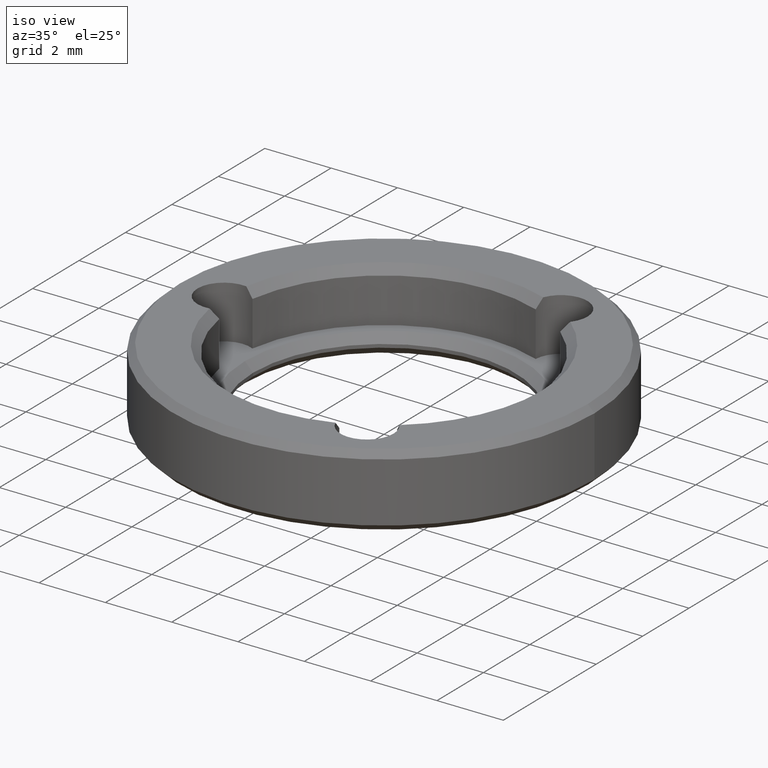
[diagram: clean part render]
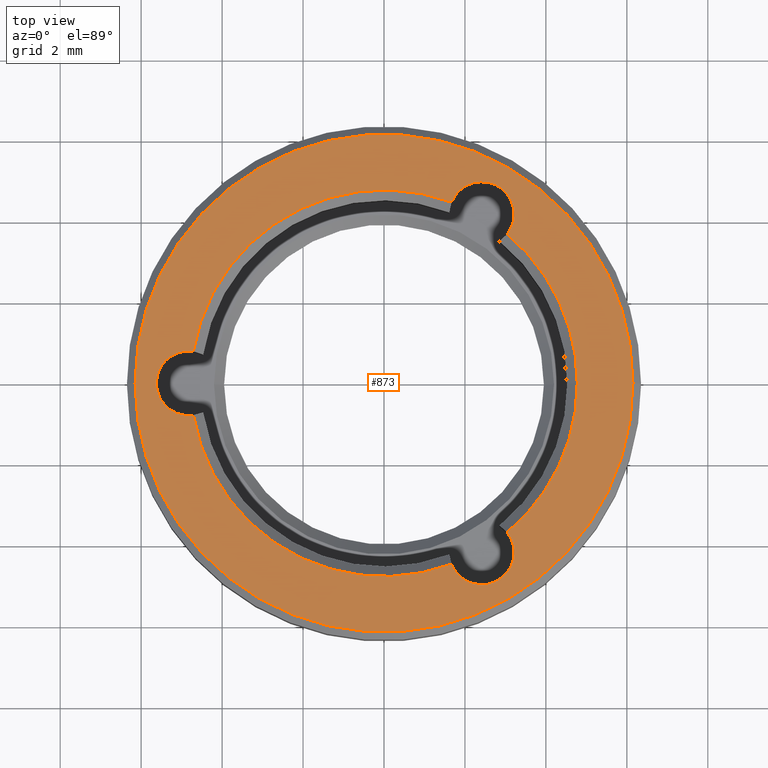
[diagram: tour spotlight — one face highlighted and labeled with its STEP entity id]
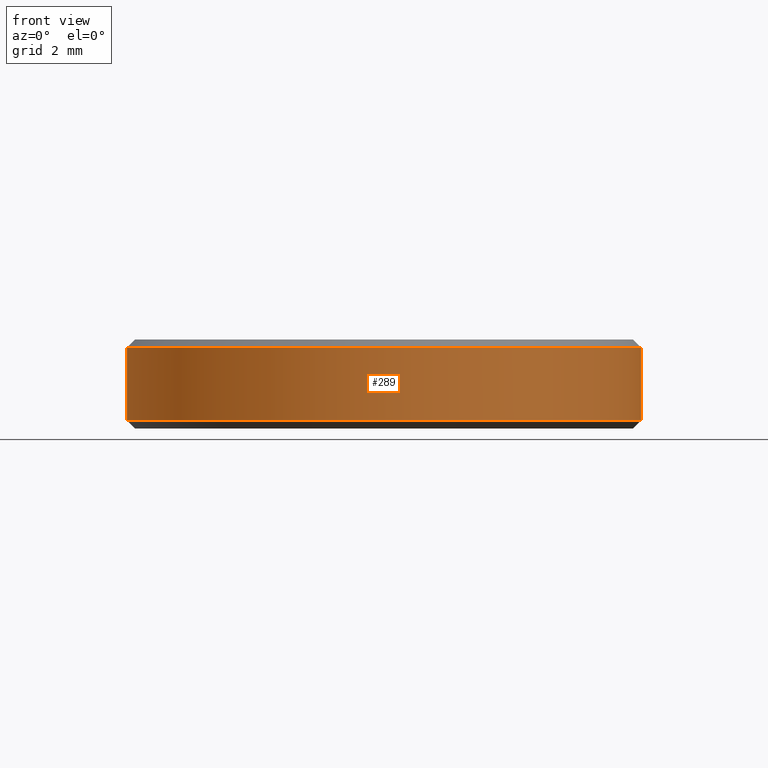
[diagram: tour spotlight — one face highlighted and labeled with its STEP entity id]
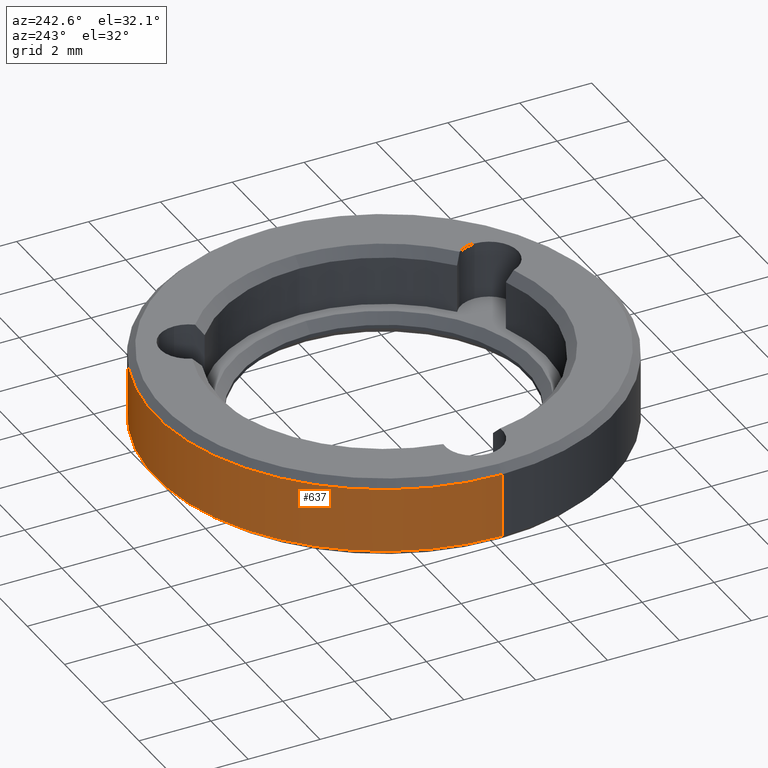
[diagram: tour spotlight — one face highlighted and labeled with its STEP entity id]
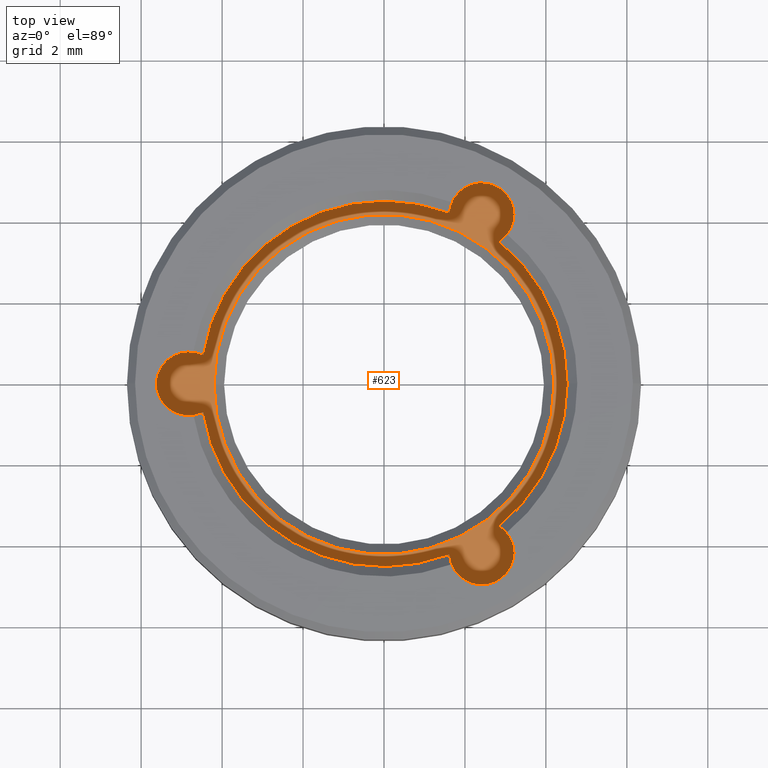
[diagram: tour spotlight — one face highlighted and labeled with its STEP entity id]
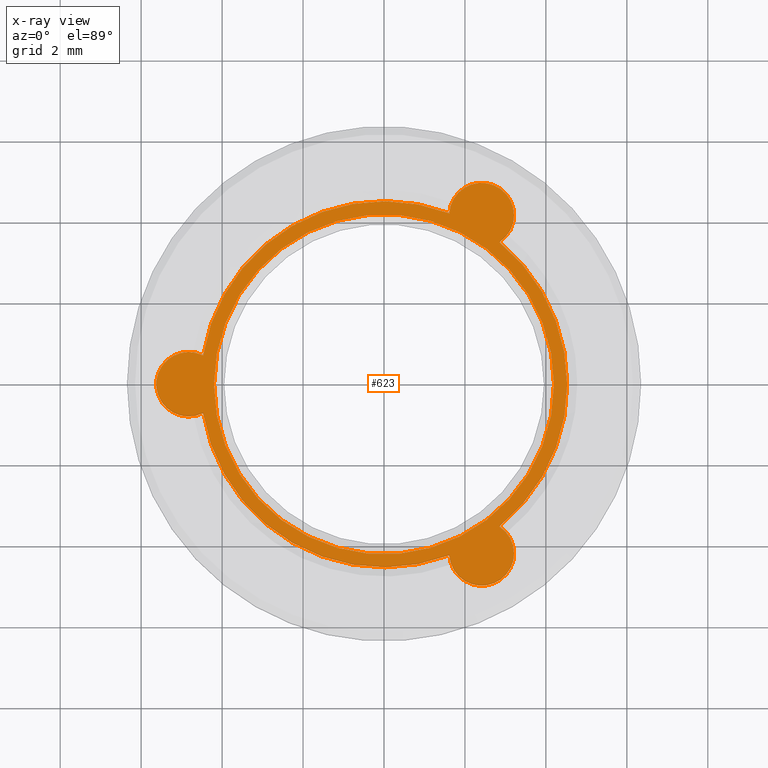
[diagram: x-ray of the same camera — body ghosted, this tour face saturated]
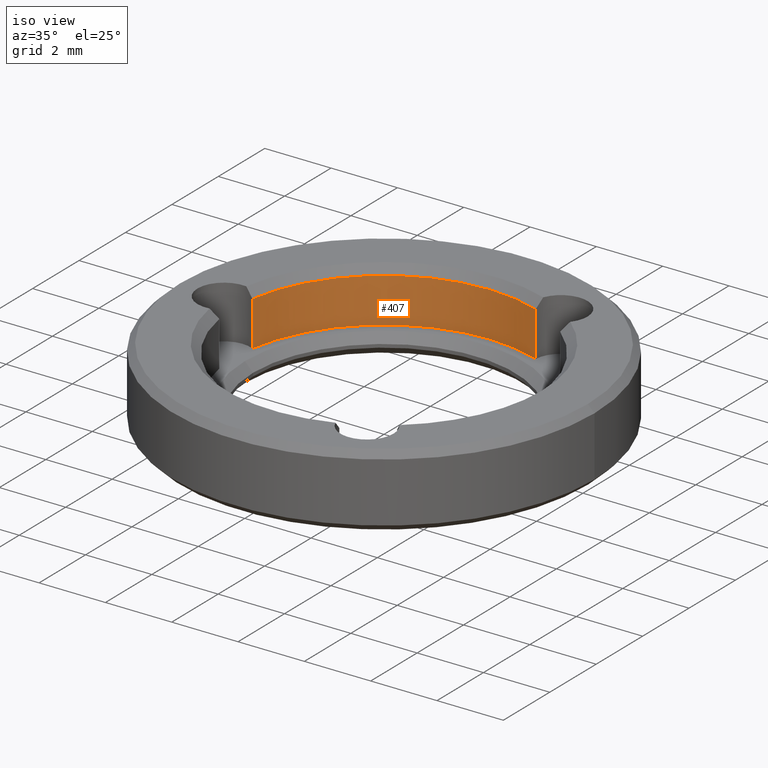
[diagram: tour spotlight — one face highlighted and labeled with its STEP entity id]
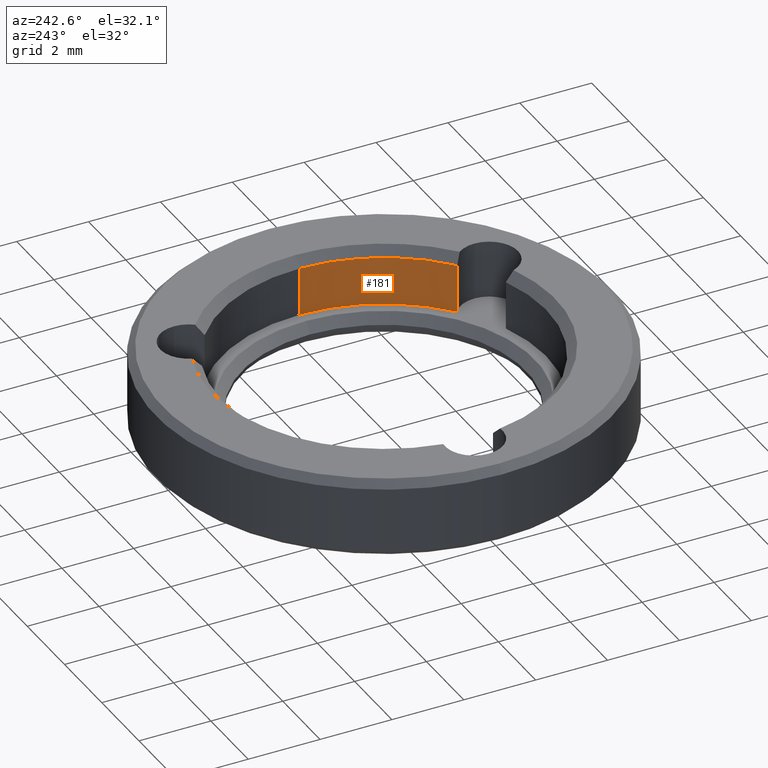
[diagram: tour spotlight — one face highlighted and labeled with its STEP entity id]
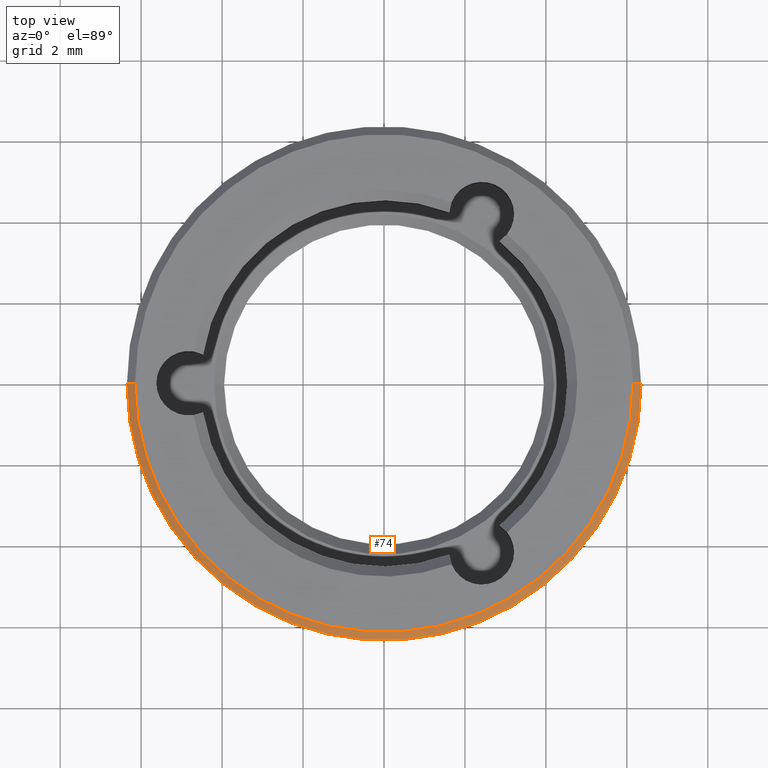
[diagram: tour spotlight — one face highlighted and labeled with its STEP entity id]
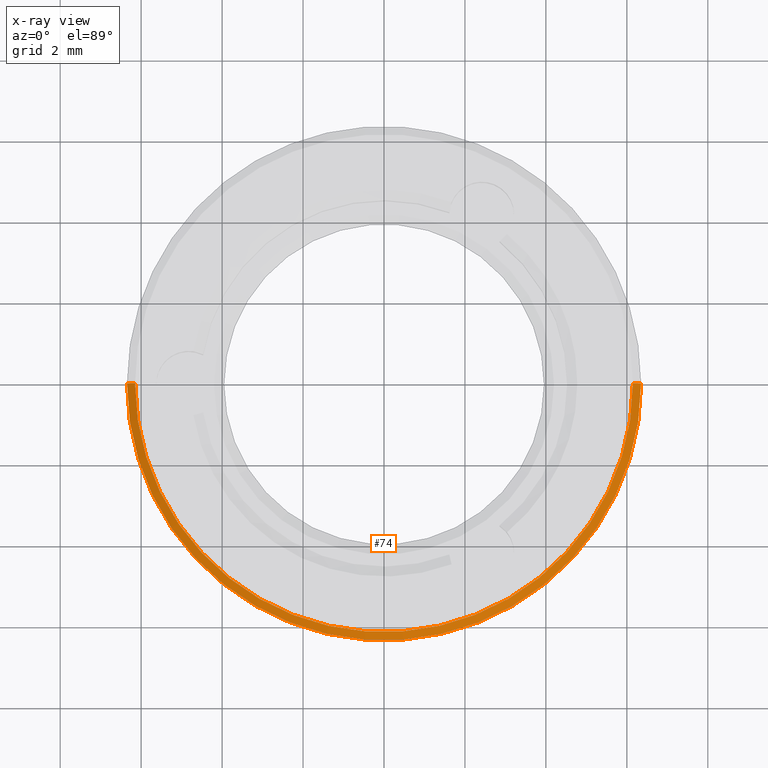
[diagram: x-ray of the same camera — body ghosted, this tour face saturated]
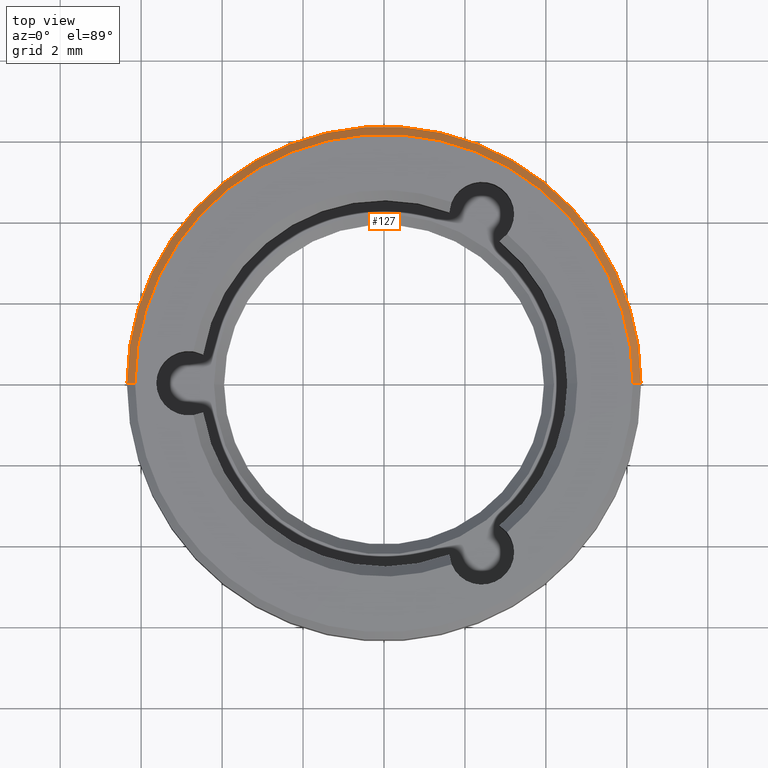
[diagram: tour spotlight — one face highlighted and labeled with its STEP entity id]
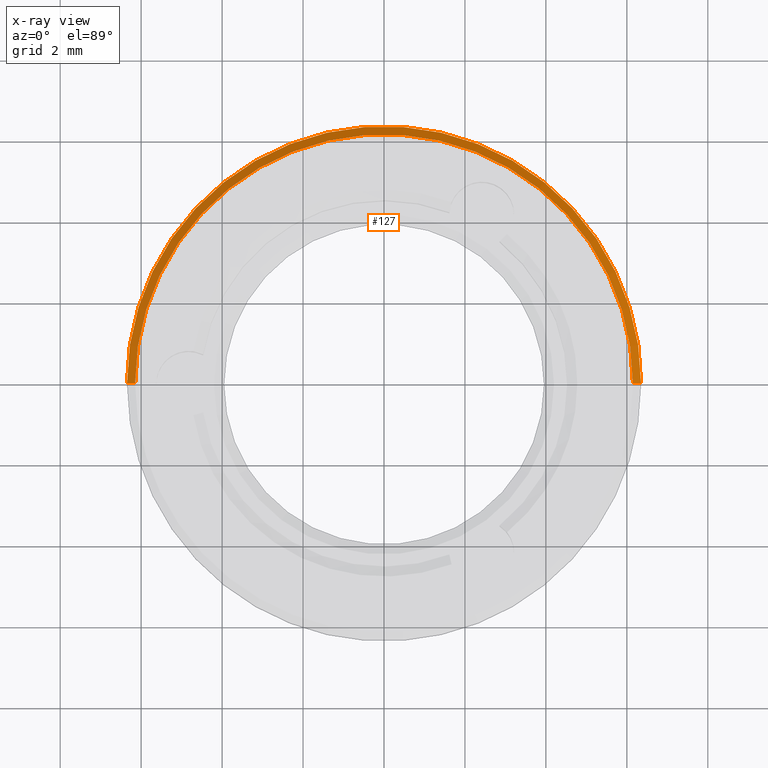
[diagram: x-ray of the same camera — body ghosted, this tour face saturated]
A machine part: a face-by-face anatomy tour. The part has 28 B-rep faces; the first image is the clean iso view, then the 8 largest visible faces are spotlighted one at a time (largest first), each with its STEP entity span.

Face 1 — top view, entity #873. In plain terms, the highlighted planar face has unit normal (0, 0, 1).
Definition (entity closure, byte-faithful):
#5 = CIRCLE ( 'NONE', #522, 0.8000000000000010436 ) ;
#13 = VERTEX_POINT ( 'NONE', #448 ) ;
#14 = AXIS2_PLACEMENT_3D ( 'NONE', #631, #621, #826 ) ;
#15 = CIRCLE ( 'NONE', #471, 4.775000000000006573 ) ;
#24 = ORIENTED_EDGE ( 'NONE', *, *, #762, .T. ) ;
#27 = DIRECTION ( 'NONE',  ( 1.000000000000000000, 0.000000000000000000, 0.000000000000000000 ) ) ;
#31 = CARTESIAN_POINT ( 'NONE',  ( -4.825000000000000178, -5.908920805885979576E-16, 2.200000000000000178 ) ) ;
#35 = VERTEX_POINT ( 'NONE', #676 ) ;
#75 = CIRCLE ( 'NONE', #103, 0.8000000000000009326 ) ;
#76 = CARTESIAN_POINT ( 'NONE',  ( 2.412500000000020517, -4.178572573259906164, 2.200000000000000178 ) ) ;
#79 = EDGE_CURVE ( 'NONE', #35, #815, #5, .T. ) ;
#85 = DIRECTION ( 'NONE',  ( 0.000000000000000000, 0.000000000000000000, 1.000000000000000000 ) ) ;
#93 = ORIENTED_EDGE ( 'NONE', *, *, #322, .F. ) ;
#102 = EDGE_CURVE ( 'NONE', #574, #143, #365, .T. ) ;
#103 = AXIS2_PLACEMENT_3D ( 'NONE', #305, #645, #862 ) ;
#115 = DIRECTION ( 'NONE',  ( 1.000000000000000000, 0.000000000000000000, -0.000000000000000000 ) ) ;
#133 = CIRCLE ( 'NONE', #486, 0.8000000000000009326 ) ;
#143 = VERTEX_POINT ( 'NONE', #205 ) ;
#148 = CIRCLE ( 'NONE', #668, 0.8000000000000010436 ) ;
#150 = AXIS2_PLACEMENT_3D ( 'NONE', #31, #303, #27 ) ;
#157 = EDGE_CURVE ( 'NONE', #251, #799, #455, .T. ) ;
#159 = VERTEX_POINT ( 'NONE', #476 ) ;
#167 = CIRCLE ( 'NONE', #150, 0.8000000000000012657 ) ;
#179 = CARTESIAN_POINT ( 'NONE',  ( 3.039959377531102014, 3.682291675432675770, 2.200000000000000178 ) ) ;
#186 = EDGE_LOOP ( 'NONE', ( #661, #24, #740, #93, #791, #771, #359, #849, #460 ) ) ;
#205 = CARTESIAN_POINT ( 'NONE',  ( -6.149999999999999467, 0.000000000000000000, 2.200000000000000178 ) ) ;
#215 = DIRECTION ( 'NONE',  ( -0.000000000000000000, -0.000000000000000000, -1.000000000000000000 ) ) ;
#219 = VERTEX_POINT ( 'NONE', #649 ) ;
#220 = CARTESIAN_POINT ( 'NONE',  ( 2.412499999999960565, 4.178572573259939027, 2.200000000000000178 ) ) ;
#230 = CARTESIAN_POINT ( 'NONE',  ( 4.775000000000006573, 0.000000000000000000, 2.200000000000000178 ) ) ;
#233 = CARTESIAN_POINT ( 'NONE',  ( 0.000000000000000000, 0.000000000000000000, 2.200000000000000178 ) ) ;
#251 = VERTEX_POINT ( 'NONE', #230 ) ;
#256 = EDGE_CURVE ( 'NONE', #143, #574, #559, .T. ) ;
#258 = DIRECTION ( 'NONE',  ( -0.5000000000000039968, 0.8660254037844362651, 0.000000000000000000 ) ) ;
#278 = EDGE_CURVE ( 'NONE', #431, #35, #148, .T. ) ;
#281 = CARTESIAN_POINT ( 'NONE',  ( 2.412499999999960565, 4.178572573259939027, 2.200000000000000178 ) ) ;
#285 = CARTESIAN_POINT ( 'NONE',  ( 0.000000000000000000, 0.000000000000000000, 2.200000000000000178 ) ) ;
#303 = DIRECTION ( 'NONE',  ( 0.000000000000000000, 0.000000000000000000, 1.000000000000000000 ) ) ;
#305 = CARTESIAN_POINT ( 'NONE',  ( 2.412500000000020517, -4.178572573259906164, 2.200000000000000178 ) ) ;
#307 = EDGE_LOOP ( 'NONE', ( #370, #375 ) ) ;
#315 = CARTESIAN_POINT ( 'NONE',  ( 0.000000000000000000, 0.000000000000000000, 2.200000000000000178 ) ) ;
#317 = DIRECTION ( 'NONE',  ( -0.000000000000000000, -0.000000000000000000, -1.000000000000000000 ) ) ;
#322 = EDGE_CURVE ( 'NONE', #13, #799, #75, .T. ) ;
#325 = PLANE ( 'NONE',  #670 ) ;
#341 = CARTESIAN_POINT ( 'NONE',  ( 6.149999999999999467, 7.654042494670954648E-16, 2.200000000000000178 ) ) ;
#355 = DIRECTION ( 'NONE',  ( 0.000000000000000000, 0.000000000000000000, 1.000000000000000000 ) ) ;
#359 = ORIENTED_EDGE ( 'NONE', *, *, #854, .F. ) ;
#365 = CIRCLE ( 'NONE', #871, 6.149999999999999467 ) ;
#370 = ORIENTED_EDGE ( 'NONE', *, *, #256, .T. ) ;
#374 = CIRCLE ( 'NONE', #440, 4.775000000000006573 ) ;
#375 = ORIENTED_EDGE ( 'NONE', *, *, #102, .T. ) ;
#384 = DIRECTION ( 'NONE',  ( 0.000000000000000000, 0.000000000000000000, 1.000000000000000000 ) ) ;
#399 = FACE_OUTER_BOUND ( 'NONE', #307, .T. ) ;
#416 = AXIS2_PLACEMENT_3D ( 'NONE', #878, #317, #680 ) ;
#424 = AXIS2_PLACEMENT_3D ( 'NONE', #285, #792, #844 ) ;
#431 = VERTEX_POINT ( 'NONE', #179 ) ;
#433 = CARTESIAN_POINT ( 'NONE',  ( -4.708937823834204117, 0.7915362096983687978, 2.200000000000000178 ) ) ;
#440 = AXIS2_PLACEMENT_3D ( 'NONE', #773, #215, #509 ) ;
#448 = CARTESIAN_POINT ( 'NONE',  ( 3.212500000000021672, -4.178572573259906164, 2.200000000000000178 ) ) ;
#449 = EDGE_CURVE ( 'NONE', #738, #815, #812, .T. ) ;
#455 = CIRCLE ( 'NONE', #14, 4.775000000000006573 ) ;
#460 = ORIENTED_EDGE ( 'NONE', *, *, #79, .F. ) ;
#471 = AXIS2_PLACEMENT_3D ( 'NONE', #233, #782, #713 ) ;
#476 = CARTESIAN_POINT ( 'NONE',  ( 1.668978446303088559, -4.473827885131008486, 2.200000000000000178 ) ) ;
#486 = AXIS2_PLACEMENT_3D ( 'NONE', #76, #881, #258 ) ;
#509 = DIRECTION ( 'NONE',  ( 1.000000000000000000, 0.000000000000000000, 0.000000000000000000 ) ) ;
#522 = AXIS2_PLACEMENT_3D ( 'NONE', #281, #636, #554 ) ;
#551 = CARTESIAN_POINT ( 'NONE',  ( 0.000000000000000000, 0.000000000000000000, 2.200000000000000178 ) ) ;
#554 = DIRECTION ( 'NONE',  ( -0.4999999999999920064, -0.8660254037844432595, 0.000000000000000000 ) ) ;
#559 = CIRCLE ( 'NONE', #424, 6.149999999999999467 ) ;
#563 = DIRECTION ( 'NONE',  ( 1.000000000000000000, 0.000000000000000000, 0.000000000000000000 ) ) ;
#574 = VERTEX_POINT ( 'NONE', #341 ) ;
#585 = DIRECTION ( 'NONE',  ( -0.4999999999999920064, -0.8660254037844432595, 0.000000000000000000 ) ) ;
#621 = DIRECTION ( 'NONE',  ( -0.000000000000000000, -0.000000000000000000, -1.000000000000000000 ) ) ;
#631 = CARTESIAN_POINT ( 'NONE',  ( 0.000000000000000000, 0.000000000000000000, 2.200000000000000178 ) ) ;
#636 = DIRECTION ( 'NONE',  ( 0.000000000000000000, 0.000000000000000000, 1.000000000000000000 ) ) ;
#645 = DIRECTION ( 'NONE',  ( 0.000000000000000000, 0.000000000000000000, 1.000000000000000000 ) ) ;
#649 = CARTESIAN_POINT ( 'NONE',  ( -4.708937823834204117, -0.7915362096983699081, 2.200000000000000178 ) ) ;
#661 = ORIENTED_EDGE ( 'NONE', *, *, #278, .F. ) ;
#668 = AXIS2_PLACEMENT_3D ( 'NONE', #220, #85, #585 ) ;
#670 = AXIS2_PLACEMENT_3D ( 'NONE', #315, #384, #115 ) ;
#672 = EDGE_CURVE ( 'NONE', #159, #219, #374, .T. ) ;
#676 = CARTESIAN_POINT ( 'NONE',  ( 3.212499999999961720, 4.178572573259939027, 2.200000000000000178 ) ) ;
#680 = DIRECTION ( 'NONE',  ( 1.000000000000000000, 0.000000000000000000, 0.000000000000000000 ) ) ;
#708 = CARTESIAN_POINT ( 'NONE',  ( 3.039959377531153528, -3.682291675432632250, 2.200000000000000178 ) ) ;
#713 = DIRECTION ( 'NONE',  ( 1.000000000000000000, 0.000000000000000000, 0.000000000000000000 ) ) ;
#738 = VERTEX_POINT ( 'NONE', #433 ) ;
#740 = ORIENTED_EDGE ( 'NONE', *, *, #157, .T. ) ;
#762 = EDGE_CURVE ( 'NONE', #431, #251, #15, .T. ) ;
#771 = ORIENTED_EDGE ( 'NONE', *, *, #672, .T. ) ;
#773 = CARTESIAN_POINT ( 'NONE',  ( 0.000000000000000000, 0.000000000000000000, 2.200000000000000178 ) ) ;
#782 = DIRECTION ( 'NONE',  ( -0.000000000000000000, -0.000000000000000000, -1.000000000000000000 ) ) ;
#791 = ORIENTED_EDGE ( 'NONE', *, *, #813, .F. ) ;
#792 = DIRECTION ( 'NONE',  ( 0.000000000000000000, 0.000000000000000000, 1.000000000000000000 ) ) ;
#794 = CARTESIAN_POINT ( 'NONE',  ( 1.668978446303025498, 4.473827885131032467, 2.200000000000000178 ) ) ;
#799 = VERTEX_POINT ( 'NONE', #708 ) ;
#800 = FACE_BOUND ( 'NONE', #186, .T. ) ;
#812 = CIRCLE ( 'NONE', #416, 4.775000000000006573 ) ;
#813 = EDGE_CURVE ( 'NONE', #159, #13, #133, .T. ) ;
#815 = VERTEX_POINT ( 'NONE', #794 ) ;
#826 = DIRECTION ( 'NONE',  ( 1.000000000000000000, 0.000000000000000000, 0.000000000000000000 ) ) ;
#844 = DIRECTION ( 'NONE',  ( 1.000000000000000000, 0.000000000000000000, 0.000000000000000000 ) ) ;
#849 = ORIENTED_EDGE ( 'NONE', *, *, #449, .T. ) ;
#854 = EDGE_CURVE ( 'NONE', #738, #219, #167, .T. ) ;
#862 = DIRECTION ( 'NONE',  ( -0.5000000000000039968, 0.8660254037844362651, 0.000000000000000000 ) ) ;
#871 = AXIS2_PLACEMENT_3D ( 'NONE', #551, #355, #563 ) ;
#873 = ADVANCED_FACE ( 'NONE', ( #800, #399 ), #325, .T. ) ;
#878 = CARTESIAN_POINT ( 'NONE',  ( 0.000000000000000000, 0.000000000000000000, 2.200000000000000178 ) ) ;
#881 = DIRECTION ( 'NONE',  ( 0.000000000000000000, 0.000000000000000000, 1.000000000000000000 ) ) ;

Face 2 — front view, entity #289. In plain terms, the highlighted cylindrical surface (partial cylindrical patch) has radius 6.35 mm, axis along (-0, -0, -1).
Definition (entity closure, byte-faithful):
#20 = CARTESIAN_POINT ( 'NONE',  ( 0.000000000000000000, 0.000000000000000000, 2.200000000000000178 ) ) ;
#25 = DIRECTION ( 'NONE',  ( -0.000000000000000000, -0.000000000000000000, -1.000000000000000000 ) ) ;
#47 = CARTESIAN_POINT ( 'NONE',  ( 0.000000000000000000, 0.000000000000000000, 2.000000000000000444 ) ) ;
#49 = EDGE_CURVE ( 'NONE', #845, #97, #480, .T. ) ;
#80 = DIRECTION ( 'NONE',  ( -0.000000000000000000, -0.000000000000000000, 1.000000000000000000 ) ) ;
#97 = VERTEX_POINT ( 'NONE', #409 ) ;
#146 = DIRECTION ( 'NONE',  ( -0.000000000000000000, -0.000000000000000000, -1.000000000000000000 ) ) ;
#151 = AXIS2_PLACEMENT_3D ( 'NONE', #20, #146, #858 ) ;
#191 = ORIENTED_EDGE ( 'NONE', *, *, #736, .T. ) ;
#218 = DIRECTION ( 'NONE',  ( 1.000000000000000000, 0.000000000000000000, 0.000000000000000000 ) ) ;
#221 = ORIENTED_EDGE ( 'NONE', *, *, #481, .T. ) ;
#239 = VERTEX_POINT ( 'NONE', #426 ) ;
#247 = CARTESIAN_POINT ( 'NONE',  ( 6.349999999999999645, 7.776507174585692163E-16, 2.000000000000000444 ) ) ;
#289 = ADVANCED_FACE ( 'NONE', ( #373 ), #435, .T. ) ;
#290 = LINE ( 'NONE', #572, #361 ) ;
#314 = EDGE_CURVE ( 'NONE', #810, #239, #290, .T. ) ;
#346 = CIRCLE ( 'NONE', #547, 6.349999999999999645 ) ;
#361 = VECTOR ( 'NONE', #25, 1000.000000000000000 ) ;
#373 = FACE_OUTER_BOUND ( 'NONE', #590, .T. ) ;
#401 = ORIENTED_EDGE ( 'NONE', *, *, #314, .T. ) ;
#409 = CARTESIAN_POINT ( 'NONE',  ( 6.349999999999999645, 7.776507174585692163E-16, 0.1999999999999987899 ) ) ;
#426 = CARTESIAN_POINT ( 'NONE',  ( -6.349999999999999645, 0.000000000000000000, 0.1999999999999987899 ) ) ;
#429 = CARTESIAN_POINT ( 'NONE',  ( 0.000000000000000000, 0.000000000000000000, 0.1999999999999987899 ) ) ;
#435 = CYLINDRICAL_SURFACE ( 'NONE', #151, 6.349999999999999645 ) ;
#480 = LINE ( 'NONE', #893, #856 ) ;
#481 = EDGE_CURVE ( 'NONE', #845, #810, #869, .T. ) ;
#547 = AXIS2_PLACEMENT_3D ( 'NONE', #429, #80, #218 ) ;
#566 = CARTESIAN_POINT ( 'NONE',  ( -6.349999999999999645, 0.000000000000000000, 2.000000000000000444 ) ) ;
#572 = CARTESIAN_POINT ( 'NONE',  ( -6.349999999999999645, 0.000000000000000000, 2.200000000000000178 ) ) ;
#587 = ORIENTED_EDGE ( 'NONE', *, *, #49, .F. ) ;
#590 = EDGE_LOOP ( 'NONE', ( #587, #221, #401, #191 ) ) ;
#600 = AXIS2_PLACEMENT_3D ( 'NONE', #47, #906, #754 ) ;
#736 = EDGE_CURVE ( 'NONE', #239, #97, #346, .T. ) ;
#754 = DIRECTION ( 'NONE',  ( 1.000000000000000000, 0.000000000000000000, 0.000000000000000000 ) ) ;
#759 = DIRECTION ( 'NONE',  ( -0.000000000000000000, -0.000000000000000000, -1.000000000000000000 ) ) ;
#810 = VERTEX_POINT ( 'NONE', #566 ) ;
#845 = VERTEX_POINT ( 'NONE', #247 ) ;
#856 = VECTOR ( 'NONE', #759, 1000.000000000000000 ) ;
#858 = DIRECTION ( 'NONE',  ( -1.000000000000000000, 0.000000000000000000, 0.000000000000000000 ) ) ;
#869 = CIRCLE ( 'NONE', #600, 6.349999999999999645 ) ;
#893 = CARTESIAN_POINT ( 'NONE',  ( 6.349999999999999645, 7.776507174585692163E-16, 2.200000000000000178 ) ) ;
#906 = DIRECTION ( 'NONE',  ( 0.000000000000000000, 0.000000000000000000, -1.000000000000000000 ) ) ;

Face 3 — auxiliary view, entity #637. In plain terms, the highlighted cylindrical surface (partial cylindrical patch) has radius 6.35 mm, axis along (-0, -0, -1).
Definition (entity closure, byte-faithful):
#12 = DIRECTION ( 'NONE',  ( -0.000000000000000000, -0.000000000000000000, 1.000000000000000000 ) ) ;
#25 = DIRECTION ( 'NONE',  ( -0.000000000000000000, -0.000000000000000000, -1.000000000000000000 ) ) ;
#49 = EDGE_CURVE ( 'NONE', #845, #97, #480, .T. ) ;
#59 = FACE_OUTER_BOUND ( 'NONE', #781, .T. ) ;
#72 = DIRECTION ( 'NONE',  ( 1.000000000000000000, 0.000000000000000000, 0.000000000000000000 ) ) ;
#97 = VERTEX_POINT ( 'NONE', #409 ) ;
#132 = CYLINDRICAL_SURFACE ( 'NONE', #696, 6.349999999999999645 ) ;
#182 = AXIS2_PLACEMENT_3D ( 'NONE', #537, #808, #396 ) ;
#224 = CIRCLE ( 'NONE', #182, 6.349999999999999645 ) ;
#239 = VERTEX_POINT ( 'NONE', #426 ) ;
#242 = EDGE_CURVE ( 'NONE', #97, #239, #825, .T. ) ;
#247 = CARTESIAN_POINT ( 'NONE',  ( 6.349999999999999645, 7.776507174585692163E-16, 2.000000000000000444 ) ) ;
#267 = CARTESIAN_POINT ( 'NONE',  ( 0.000000000000000000, 0.000000000000000000, 2.200000000000000178 ) ) ;
#290 = LINE ( 'NONE', #572, #361 ) ;
#314 = EDGE_CURVE ( 'NONE', #810, #239, #290, .T. ) ;
#330 = AXIS2_PLACEMENT_3D ( 'NONE', #422, #12, #72 ) ;
#361 = VECTOR ( 'NONE', #25, 1000.000000000000000 ) ;
#367 = EDGE_CURVE ( 'NONE', #810, #845, #224, .T. ) ;
#396 = DIRECTION ( 'NONE',  ( 1.000000000000000000, 0.000000000000000000, 0.000000000000000000 ) ) ;
#409 = CARTESIAN_POINT ( 'NONE',  ( 6.349999999999999645, 7.776507174585692163E-16, 0.1999999999999987899 ) ) ;
#422 = CARTESIAN_POINT ( 'NONE',  ( 0.000000000000000000, 0.000000000000000000, 0.1999999999999987899 ) ) ;
#426 = CARTESIAN_POINT ( 'NONE',  ( -6.349999999999999645, 0.000000000000000000, 0.1999999999999987899 ) ) ;
#466 = ORIENTED_EDGE ( 'NONE', *, *, #242, .T. ) ;
#480 = LINE ( 'NONE', #893, #856 ) ;
#537 = CARTESIAN_POINT ( 'NONE',  ( 0.000000000000000000, 0.000000000000000000, 2.000000000000000444 ) ) ;
#545 = DIRECTION ( 'NONE',  ( -0.000000000000000000, -0.000000000000000000, -1.000000000000000000 ) ) ;
#566 = CARTESIAN_POINT ( 'NONE',  ( -6.349999999999999645, 0.000000000000000000, 2.000000000000000444 ) ) ;
#572 = CARTESIAN_POINT ( 'NONE',  ( -6.349999999999999645, 0.000000000000000000, 2.200000000000000178 ) ) ;
#582 = ORIENTED_EDGE ( 'NONE', *, *, #367, .T. ) ;
#635 = DIRECTION ( 'NONE',  ( -1.000000000000000000, 0.000000000000000000, 0.000000000000000000 ) ) ;
#637 = ADVANCED_FACE ( 'NONE', ( #59 ), #132, .T. ) ;
#696 = AXIS2_PLACEMENT_3D ( 'NONE', #267, #545, #635 ) ;
#728 = ORIENTED_EDGE ( 'NONE', *, *, #314, .F. ) ;
#759 = DIRECTION ( 'NONE',  ( -0.000000000000000000, -0.000000000000000000, -1.000000000000000000 ) ) ;
#781 = EDGE_LOOP ( 'NONE', ( #582, #877, #466, #728 ) ) ;
#808 = DIRECTION ( 'NONE',  ( 0.000000000000000000, 0.000000000000000000, -1.000000000000000000 ) ) ;
#810 = VERTEX_POINT ( 'NONE', #566 ) ;
#825 = CIRCLE ( 'NONE', #330, 6.349999999999999645 ) ;
#845 = VERTEX_POINT ( 'NONE', #247 ) ;
#856 = VECTOR ( 'NONE', #759, 1000.000000000000000 ) ;
#877 = ORIENTED_EDGE ( 'NONE', *, *, #49, .T. ) ;
#893 = CARTESIAN_POINT ( 'NONE',  ( 6.349999999999999645, 7.776507174585692163E-16, 2.200000000000000178 ) ) ;

Face 4 — top view, entity #623. An x-ray twin of the same camera follows (body ghosted, this face saturated) — the face is partly hidden behind the body. In plain terms, the highlighted planar face has unit normal (0, 0, 1).
Definition (entity closure, byte-faithful):
#17 = CARTESIAN_POINT ( 'NONE',  ( 4.199999999999995737, 0.000000000000000000, 0.6000000000000000888 ) ) ;
#21 = EDGE_CURVE ( 'NONE', #678, #889, #741, .T. ) ;
#30 = ORIENTED_EDGE ( 'NONE', *, *, #847, .F. ) ;
#38 = DIRECTION ( 'NONE',  ( -0.000000000000000000, -0.000000000000000000, -1.000000000000000000 ) ) ;
#56 = CARTESIAN_POINT ( 'NONE',  ( 0.000000000000000000, 0.000000000000000000, 0.6000000000000000888 ) ) ;
#67 = PLANE ( 'NONE',  #198 ) ;
#68 = DIRECTION ( 'NONE',  ( 1.000000000000000000, 0.000000000000000000, 0.000000000000000000 ) ) ;
#73 = AXIS2_PLACEMENT_3D ( 'NONE', #489, #83, #288 ) ;
#83 = DIRECTION ( 'NONE',  ( 0.000000000000000000, 0.000000000000000000, 1.000000000000000000 ) ) ;
#84 = EDGE_CURVE ( 'NONE', #793, #462, #171, .T. ) ;
#86 = ORIENTED_EDGE ( 'NONE', *, *, #84, .F. ) ;
#90 = DIRECTION ( 'NONE',  ( 1.000000000000000000, 0.000000000000000000, 0.000000000000000000 ) ) ;
#92 = CARTESIAN_POINT ( 'NONE',  ( 2.412500000000020517, -4.178572573259906164, 0.6000000000000003109 ) ) ;
#107 = DIRECTION ( 'NONE',  ( -0.000000000000000000, -0.000000000000000000, -1.000000000000000000 ) ) ;
#108 = AXIS2_PLACEMENT_3D ( 'NONE', #520, #107, #798 ) ;
#125 = AXIS2_PLACEMENT_3D ( 'NONE', #703, #634, #68 ) ;
#155 = DIRECTION ( 'NONE',  ( 1.000000000000000000, -2.168404344971006501E-15, 0.000000000000000000 ) ) ;
#158 = CARTESIAN_POINT ( 'NONE',  ( 0.000000000000000000, 0.000000000000000000, 0.6000000000000000888 ) ) ;
#171 = CIRCLE ( 'NONE', #125, 0.8000000000000008216 ) ;
#177 = CARTESIAN_POINT ( 'NONE',  ( -4.199999999999995737, 5.143516556418877011E-16, 0.6000000000000000888 ) ) ;
#180 = EDGE_LOOP ( 'NONE', ( #528, #306 ) ) ;
#189 = EDGE_CURVE ( 'NONE', #385, #462, #515, .T. ) ;
#198 = AXIS2_PLACEMENT_3D ( 'NONE', #549, #630, #828 ) ;
#210 = CARTESIAN_POINT ( 'NONE',  ( -4.468005181347147747, 0.7159292559010406176, 0.6000000000000003109 ) ) ;
#214 = EDGE_CURVE ( 'NONE', #379, #464, #595, .T. ) ;
#223 = CARTESIAN_POINT ( 'NONE',  ( 0.000000000000000000, 0.000000000000000000, 0.6000000000000000888 ) ) ;
#234 = VERTEX_POINT ( 'NONE', #360 ) ;
#235 = DIRECTION ( 'NONE',  ( 0.000000000000000000, 0.000000000000000000, 1.000000000000000000 ) ) ;
#238 = DIRECTION ( 'NONE',  ( 1.000000000000000000, 0.000000000000000000, 0.000000000000000000 ) ) ;
#240 = AXIS2_PLACEMENT_3D ( 'NONE', #874, #38, #264 ) ;
#264 = DIRECTION ( 'NONE',  ( 1.000000000000000000, 0.000000000000000000, 0.000000000000000000 ) ) ;
#270 = FACE_BOUND ( 'NONE', #180, .T. ) ;
#288 = DIRECTION ( 'NONE',  ( 1.000000000000000000, 0.000000000000000000, 0.000000000000000000 ) ) ;
#297 = CIRCLE ( 'NONE', #108, 0.8000000000000008216 ) ;
#306 = ORIENTED_EDGE ( 'NONE', *, *, #711, .T. ) ;
#308 = CARTESIAN_POINT ( 'NONE',  ( 4.525000000000000355, 0.000000000000000000, 0.6000000000000000888 ) ) ;
#312 = CIRCLE ( 'NONE', #787, 4.199999999999995737 ) ;
#319 = ORIENTED_EDGE ( 'NONE', *, *, #438, .F. ) ;
#328 = EDGE_CURVE ( 'NONE', #234, #664, #581, .T. ) ;
#329 = DIRECTION ( 'NONE',  ( -0.000000000000000000, -0.000000000000000000, -1.000000000000000000 ) ) ;
#351 = AXIS2_PLACEMENT_3D ( 'NONE', #398, #329, #730 ) ;
#358 = CIRCLE ( 'NONE', #560, 0.8000000000000008216 ) ;
#360 = CARTESIAN_POINT ( 'NONE',  ( -4.468005181347147747, -0.7159292559010418389, 0.6000000000000003109 ) ) ;
#369 = CARTESIAN_POINT ( 'NONE',  ( 0.000000000000000000, 0.000000000000000000, 0.6000000000000000888 ) ) ;
#377 = DIRECTION ( 'NONE',  ( -0.000000000000000000, -0.000000000000000000, -1.000000000000000000 ) ) ;
#379 = VERTEX_POINT ( 'NONE', #739 ) ;
#385 = VERTEX_POINT ( 'NONE', #308 ) ;
#398 = CARTESIAN_POINT ( 'NONE',  ( 0.000000000000000000, 0.000000000000000000, 0.6000000000000000888 ) ) ;
#412 = EDGE_CURVE ( 'NONE', #234, #650, #640, .T. ) ;
#438 = EDGE_CURVE ( 'NONE', #719, #793, #297, .T. ) ;
#442 = DIRECTION ( 'NONE',  ( 1.000000000000000000, 0.000000000000000000, 0.000000000000000000 ) ) ;
#450 = CARTESIAN_POINT ( 'NONE',  ( 2.412500000000020517, -4.178572573259906164, 0.6000000000000003109 ) ) ;
#459 = AXIS2_PLACEMENT_3D ( 'NONE', #223, #775, #238 ) ;
#461 = CARTESIAN_POINT ( 'NONE',  ( 3.212500000000021672, -4.178572573259906164, 0.6000000000000003109 ) ) ;
#462 = VERTEX_POINT ( 'NONE', #802 ) ;
#464 = VERTEX_POINT ( 'NONE', #461 ) ;
#469 = DIRECTION ( 'NONE',  ( 0.000000000000000000, 0.000000000000000000, 1.000000000000000000 ) ) ;
#489 = CARTESIAN_POINT ( 'NONE',  ( 0.000000000000000000, 0.000000000000000000, 0.6000000000000000888 ) ) ;
#497 = DIRECTION ( 'NONE',  ( -0.000000000000000000, -0.000000000000000000, -1.000000000000000000 ) ) ;
#504 = ORIENTED_EDGE ( 'NONE', *, *, #328, .T. ) ;
#507 = DIRECTION ( 'NONE',  ( 1.000000000000000000, 0.000000000000000000, 0.000000000000000000 ) ) ;
#512 = ORIENTED_EDGE ( 'NONE', *, *, #412, .F. ) ;
#515 = CIRCLE ( 'NONE', #532, 4.525000000000000355 ) ;
#519 = ORIENTED_EDGE ( 'NONE', *, *, #540, .T. ) ;
#520 = CARTESIAN_POINT ( 'NONE',  ( 2.412499999999960565, 4.178572573259939027, 0.6000000000000003109 ) ) ;
#528 = ORIENTED_EDGE ( 'NONE', *, *, #21, .T. ) ;
#532 = AXIS2_PLACEMENT_3D ( 'NONE', #369, #235, #507 ) ;
#540 = EDGE_CURVE ( 'NONE', #719, #650, #707, .T. ) ;
#549 = CARTESIAN_POINT ( 'NONE',  ( 0.000000000000000000, 0.000000000000000000, 0.6000000000000000888 ) ) ;
#560 = AXIS2_PLACEMENT_3D ( 'NONE', #450, #677, #442 ) ;
#567 = EDGE_LOOP ( 'NONE', ( #859, #855, #86, #319, #519, #512, #504, #30, #821 ) ) ;
#575 = CARTESIAN_POINT ( 'NONE',  ( 3.212499999999961720, 4.178572573259939027, 0.6000000000000003109 ) ) ;
#581 = CIRCLE ( 'NONE', #459, 4.525000000000000355 ) ;
#595 = CIRCLE ( 'NONE', #896, 0.8000000000000008216 ) ;
#597 = AXIS2_PLACEMENT_3D ( 'NONE', #56, #469, #693 ) ;
#623 = ADVANCED_FACE ( 'NONE', ( #270, #903 ), #67, .T. ) ;
#630 = DIRECTION ( 'NONE',  ( 0.000000000000000000, 0.000000000000000000, 1.000000000000000000 ) ) ;
#634 = DIRECTION ( 'NONE',  ( -0.000000000000000000, -0.000000000000000000, -1.000000000000000000 ) ) ;
#639 = CARTESIAN_POINT ( 'NONE',  ( 1.613989667750802770, -4.227370619237641236, 0.6000000000000003109 ) ) ;
#640 = CIRCLE ( 'NONE', #240, 0.8000000000000012657 ) ;
#650 = VERTEX_POINT ( 'NONE', #210 ) ;
#659 = CARTESIAN_POINT ( 'NONE',  ( 1.613989667750742152, 4.227370619237664329, 0.6000000000000003109 ) ) ;
#664 = VERTEX_POINT ( 'NONE', #639 ) ;
#677 = DIRECTION ( 'NONE',  ( -0.000000000000000000, -0.000000000000000000, -1.000000000000000000 ) ) ;
#678 = VERTEX_POINT ( 'NONE', #17 ) ;
#693 = DIRECTION ( 'NONE',  ( 1.000000000000000000, 0.000000000000000000, 0.000000000000000000 ) ) ;
#703 = CARTESIAN_POINT ( 'NONE',  ( 2.412499999999960565, 4.178572573259939027, 0.6000000000000003109 ) ) ;
#707 = CIRCLE ( 'NONE', #597, 4.525000000000000355 ) ;
#711 = EDGE_CURVE ( 'NONE', #889, #678, #312, .T. ) ;
#719 = VERTEX_POINT ( 'NONE', #659 ) ;
#730 = DIRECTION ( 'NONE',  ( 1.000000000000000000, 0.000000000000000000, 0.000000000000000000 ) ) ;
#739 = CARTESIAN_POINT ( 'NONE',  ( 2.854015513596383613, -3.511441363336594623, 0.6000000000000003109 ) ) ;
#741 = CIRCLE ( 'NONE', #351, 4.199999999999995737 ) ;
#775 = DIRECTION ( 'NONE',  ( 0.000000000000000000, 0.000000000000000000, 1.000000000000000000 ) ) ;
#787 = AXIS2_PLACEMENT_3D ( 'NONE', #158, #497, #90 ) ;
#793 = VERTEX_POINT ( 'NONE', #575 ) ;
#798 = DIRECTION ( 'NONE',  ( 1.000000000000000000, 0.000000000000000000, 0.000000000000000000 ) ) ;
#802 = CARTESIAN_POINT ( 'NONE',  ( 2.854015513596333875, 3.511441363336634147, 0.6000000000000003109 ) ) ;
#804 = EDGE_CURVE ( 'NONE', #379, #385, #809, .T. ) ;
#809 = CIRCLE ( 'NONE', #73, 4.525000000000000355 ) ;
#821 = ORIENTED_EDGE ( 'NONE', *, *, #214, .F. ) ;
#828 = DIRECTION ( 'NONE',  ( 1.000000000000000000, 0.000000000000000000, -0.000000000000000000 ) ) ;
#847 = EDGE_CURVE ( 'NONE', #464, #664, #358, .T. ) ;
#855 = ORIENTED_EDGE ( 'NONE', *, *, #189, .T. ) ;
#859 = ORIENTED_EDGE ( 'NONE', *, *, #804, .T. ) ;
#874 = CARTESIAN_POINT ( 'NONE',  ( -4.825000000000000178, -5.908920805885979576E-16, 0.6000000000000003109 ) ) ;
#889 = VERTEX_POINT ( 'NONE', #177 ) ;
#896 = AXIS2_PLACEMENT_3D ( 'NONE', #92, #377, #155 ) ;
#903 = FACE_OUTER_BOUND ( 'NONE', #567, .T. ) ;

Face 5 — iso view, entity #407. In plain terms, the highlighted cylindrical surface (partial cylindrical patch) has radius 4.525 mm, axis along (-0, -0, 1).
Definition (entity closure, byte-faithful):
#34 = CYLINDRICAL_SURFACE ( 'NONE', #695, 4.525000000000000355 ) ;
#56 = CARTESIAN_POINT ( 'NONE',  ( 0.000000000000000000, 0.000000000000000000, 0.6000000000000000888 ) ) ;
#60 = VECTOR ( 'NONE', #868, 1000.000000000000000 ) ;
#117 = CARTESIAN_POINT ( 'NONE',  ( 1.613989667750742374, 4.227370619237664329, 1.400000000000000133 ) ) ;
#168 = EDGE_LOOP ( 'NONE', ( #403, #710, #641, #335 ) ) ;
#192 = DIRECTION ( 'NONE',  ( -0.000000000000000000, -0.000000000000000000, 1.000000000000000000 ) ) ;
#210 = CARTESIAN_POINT ( 'NONE',  ( -4.468005181347147747, 0.7159292559010406176, 0.6000000000000003109 ) ) ;
#253 = VERTEX_POINT ( 'NONE', #718 ) ;
#334 = LINE ( 'NONE', #888, #534 ) ;
#335 = ORIENTED_EDGE ( 'NONE', *, *, #404, .T. ) ;
#354 = DIRECTION ( 'NONE',  ( 0.000000000000000000, 0.000000000000000000, 1.000000000000000000 ) ) ;
#403 = ORIENTED_EDGE ( 'NONE', *, *, #540, .F. ) ;
#404 = EDGE_CURVE ( 'NONE', #253, #650, #334, .T. ) ;
#407 = ADVANCED_FACE ( 'NONE', ( #617 ), #34, .F. ) ;
#428 = EDGE_CURVE ( 'NONE', #719, #530, #529, .T. ) ;
#469 = DIRECTION ( 'NONE',  ( 0.000000000000000000, 0.000000000000000000, 1.000000000000000000 ) ) ;
#529 = LINE ( 'NONE', #117, #60 ) ;
#530 = VERTEX_POINT ( 'NONE', #820 ) ;
#534 = VECTOR ( 'NONE', #669, 1000.000000000000000 ) ;
#540 = EDGE_CURVE ( 'NONE', #719, #650, #707, .T. ) ;
#596 = DIRECTION ( 'NONE',  ( 1.000000000000000000, 0.000000000000000000, 0.000000000000000000 ) ) ;
#597 = AXIS2_PLACEMENT_3D ( 'NONE', #56, #469, #693 ) ;
#602 = EDGE_CURVE ( 'NONE', #530, #253, #772, .T. ) ;
#609 = CARTESIAN_POINT ( 'NONE',  ( 0.000000000000000000, 0.000000000000000000, 0.6000000000000000888 ) ) ;
#617 = FACE_OUTER_BOUND ( 'NONE', #168, .T. ) ;
#641 = ORIENTED_EDGE ( 'NONE', *, *, #602, .T. ) ;
#650 = VERTEX_POINT ( 'NONE', #210 ) ;
#659 = CARTESIAN_POINT ( 'NONE',  ( 1.613989667750742152, 4.227370619237664329, 0.6000000000000003109 ) ) ;
#669 = DIRECTION ( 'NONE',  ( 0.000000000000000000, 0.000000000000000000, -1.000000000000000000 ) ) ;
#693 = DIRECTION ( 'NONE',  ( 1.000000000000000000, 0.000000000000000000, 0.000000000000000000 ) ) ;
#695 = AXIS2_PLACEMENT_3D ( 'NONE', #609, #192, #596 ) ;
#707 = CIRCLE ( 'NONE', #597, 4.525000000000000355 ) ;
#710 = ORIENTED_EDGE ( 'NONE', *, *, #428, .T. ) ;
#718 = CARTESIAN_POINT ( 'NONE',  ( -4.468005181347150412, 0.7159292559010423940, 1.949999999999996403 ) ) ;
#719 = VERTEX_POINT ( 'NONE', #659 ) ;
#758 = CARTESIAN_POINT ( 'NONE',  ( 0.000000000000000000, 0.000000000000000000, 1.949999999999996403 ) ) ;
#772 = CIRCLE ( 'NONE', #851, 4.525000000000000355 ) ;
#820 = CARTESIAN_POINT ( 'NONE',  ( 1.613989667750742374, 4.227370619237666993, 1.949999999999996625 ) ) ;
#851 = AXIS2_PLACEMENT_3D ( 'NONE', #758, #354, #895 ) ;
#868 = DIRECTION ( 'NONE',  ( -0.000000000000000000, 0.000000000000000000, 1.000000000000000000 ) ) ;
#888 = CARTESIAN_POINT ( 'NONE',  ( -4.468005181347147747, 0.7159292559010407286, 1.400000000000000133 ) ) ;
#895 = DIRECTION ( 'NONE',  ( 1.000000000000000000, 0.000000000000000000, 0.000000000000000000 ) ) ;

Face 6 — auxiliary view, entity #181. In plain terms, the highlighted cylindrical surface (partial cylindrical patch) has radius 4.525 mm, axis along (-0, -0, 1).
Definition (entity closure, byte-faithful):
#57 = CYLINDRICAL_SURFACE ( 'NONE', #61, 4.525000000000000355 ) ;
#61 = AXIS2_PLACEMENT_3D ( 'NONE', #342, #274, #642 ) ;
#71 = ORIENTED_EDGE ( 'NONE', *, *, #356, .F. ) ;
#73 = AXIS2_PLACEMENT_3D ( 'NONE', #489, #83, #288 ) ;
#83 = DIRECTION ( 'NONE',  ( 0.000000000000000000, 0.000000000000000000, 1.000000000000000000 ) ) ;
#106 = ORIENTED_EDGE ( 'NONE', *, *, #225, .T. ) ;
#110 = EDGE_CURVE ( 'NONE', #379, #443, #904, .T. ) ;
#142 = CARTESIAN_POINT ( 'NONE',  ( 2.854015513596383613, -3.511441363336594623, 1.400000000000000133 ) ) ;
#144 = CARTESIAN_POINT ( 'NONE',  ( 4.525000000000000355, 0.000000000000000000, 1.949999999999996403 ) ) ;
#181 = ADVANCED_FACE ( 'NONE', ( #901 ), #57, .F. ) ;
#204 = VECTOR ( 'NONE', #277, 1000.000000000000000 ) ;
#212 = AXIS2_PLACEMENT_3D ( 'NONE', #579, #783, #568 ) ;
#225 = EDGE_CURVE ( 'NONE', #443, #674, #311, .T. ) ;
#244 = DIRECTION ( 'NONE',  ( -0.000000000000000000, -0.000000000000000000, 1.000000000000000000 ) ) ;
#254 = CARTESIAN_POINT ( 'NONE',  ( 4.525000000000000355, 0.000000000000000000, 0.6000000000000000888 ) ) ;
#274 = DIRECTION ( 'NONE',  ( -0.000000000000000000, -0.000000000000000000, 1.000000000000000000 ) ) ;
#277 = DIRECTION ( 'NONE',  ( 0.000000000000000000, -0.000000000000000000, 1.000000000000000000 ) ) ;
#288 = DIRECTION ( 'NONE',  ( 1.000000000000000000, 0.000000000000000000, 0.000000000000000000 ) ) ;
#291 = EDGE_LOOP ( 'NONE', ( #71, #490, #304, #106 ) ) ;
#304 = ORIENTED_EDGE ( 'NONE', *, *, #110, .T. ) ;
#308 = CARTESIAN_POINT ( 'NONE',  ( 4.525000000000000355, 0.000000000000000000, 0.6000000000000000888 ) ) ;
#311 = CIRCLE ( 'NONE', #212, 4.525000000000000355 ) ;
#342 = CARTESIAN_POINT ( 'NONE',  ( 0.000000000000000000, 0.000000000000000000, 0.6000000000000000888 ) ) ;
#356 = EDGE_CURVE ( 'NONE', #385, #674, #885, .T. ) ;
#379 = VERTEX_POINT ( 'NONE', #739 ) ;
#385 = VERTEX_POINT ( 'NONE', #308 ) ;
#443 = VERTEX_POINT ( 'NONE', #733 ) ;
#489 = CARTESIAN_POINT ( 'NONE',  ( 0.000000000000000000, 0.000000000000000000, 0.6000000000000000888 ) ) ;
#490 = ORIENTED_EDGE ( 'NONE', *, *, #804, .F. ) ;
#568 = DIRECTION ( 'NONE',  ( 1.000000000000000000, 0.000000000000000000, 0.000000000000000000 ) ) ;
#579 = CARTESIAN_POINT ( 'NONE',  ( 0.000000000000000000, 0.000000000000000000, 1.949999999999996403 ) ) ;
#626 = VECTOR ( 'NONE', #244, 1000.000000000000000 ) ;
#642 = DIRECTION ( 'NONE',  ( 1.000000000000000000, 0.000000000000000000, 0.000000000000000000 ) ) ;
#674 = VERTEX_POINT ( 'NONE', #144 ) ;
#733 = CARTESIAN_POINT ( 'NONE',  ( 2.854015513596384501, -3.511441363336595511, 1.949999999999996181 ) ) ;
#739 = CARTESIAN_POINT ( 'NONE',  ( 2.854015513596383613, -3.511441363336594623, 0.6000000000000003109 ) ) ;
#783 = DIRECTION ( 'NONE',  ( 0.000000000000000000, 0.000000000000000000, 1.000000000000000000 ) ) ;
#804 = EDGE_CURVE ( 'NONE', #379, #385, #809, .T. ) ;
#809 = CIRCLE ( 'NONE', #73, 4.525000000000000355 ) ;
#885 = LINE ( 'NONE', #254, #626 ) ;
#901 = FACE_OUTER_BOUND ( 'NONE', #291, .T. ) ;
#904 = LINE ( 'NONE', #142, #204 ) ;

Face 7 — top view, entity #74. An x-ray twin of the same camera follows (body ghosted, this face saturated) — the face is partly hidden behind the body. In plain terms, the highlighted conical surface has half-angle 45 deg.
Definition (entity closure, byte-faithful):
#47 = CARTESIAN_POINT ( 'NONE',  ( 0.000000000000000000, 0.000000000000000000, 2.000000000000000444 ) ) ;
#74 = ADVANCED_FACE ( 'NONE', ( #415 ), #795, .T. ) ;
#112 = ORIENTED_EDGE ( 'NONE', *, *, #352, .F. ) ;
#143 = VERTEX_POINT ( 'NONE', #205 ) ;
#205 = CARTESIAN_POINT ( 'NONE',  ( -6.149999999999999467, 0.000000000000000000, 2.200000000000000178 ) ) ;
#247 = CARTESIAN_POINT ( 'NONE',  ( 6.349999999999999645, 7.776507174585692163E-16, 2.000000000000000444 ) ) ;
#256 = EDGE_CURVE ( 'NONE', #143, #574, #559, .T. ) ;
#260 = CARTESIAN_POINT ( 'NONE',  ( 6.149999999999999467, 7.531577814756219106E-16, 2.200000000000000178 ) ) ;
#285 = CARTESIAN_POINT ( 'NONE',  ( 0.000000000000000000, 0.000000000000000000, 2.200000000000000178 ) ) ;
#302 = AXIS2_PLACEMENT_3D ( 'NONE', #353, #837, #419 ) ;
#341 = CARTESIAN_POINT ( 'NONE',  ( 6.149999999999999467, 7.654042494670954648E-16, 2.200000000000000178 ) ) ;
#352 = EDGE_CURVE ( 'NONE', #574, #845, #447, .T. ) ;
#353 = CARTESIAN_POINT ( 'NONE',  ( 0.000000000000000000, 0.000000000000000000, 2.200000000000000178 ) ) ;
#392 = DIRECTION ( 'NONE',  ( 0.7071067811865490160, 8.659560562354950115E-17, -0.7071067811865459074 ) ) ;
#415 = FACE_OUTER_BOUND ( 'NONE', #496, .T. ) ;
#419 = DIRECTION ( 'NONE',  ( -1.000000000000000000, 0.000000000000000000, 0.000000000000000000 ) ) ;
#424 = AXIS2_PLACEMENT_3D ( 'NONE', #285, #792, #844 ) ;
#447 = LINE ( 'NONE', #260, #898 ) ;
#463 = DIRECTION ( 'NONE',  ( -0.7071067811865490160, 0.000000000000000000, -0.7071067811865459074 ) ) ;
#481 = EDGE_CURVE ( 'NONE', #845, #810, #869, .T. ) ;
#496 = EDGE_LOOP ( 'NONE', ( #112, #569, #784, #870 ) ) ;
#559 = CIRCLE ( 'NONE', #424, 6.149999999999999467 ) ;
#566 = CARTESIAN_POINT ( 'NONE',  ( -6.349999999999999645, 0.000000000000000000, 2.000000000000000444 ) ) ;
#569 = ORIENTED_EDGE ( 'NONE', *, *, #256, .F. ) ;
#574 = VERTEX_POINT ( 'NONE', #341 ) ;
#599 = VECTOR ( 'NONE', #463, 1000.000000000000000 ) ;
#600 = AXIS2_PLACEMENT_3D ( 'NONE', #47, #906, #754 ) ;
#611 = LINE ( 'NONE', #786, #599 ) ;
#754 = DIRECTION ( 'NONE',  ( 1.000000000000000000, 0.000000000000000000, 0.000000000000000000 ) ) ;
#784 = ORIENTED_EDGE ( 'NONE', *, *, #890, .T. ) ;
#786 = CARTESIAN_POINT ( 'NONE',  ( -6.149999999999999467, 0.000000000000000000, 2.200000000000000178 ) ) ;
#792 = DIRECTION ( 'NONE',  ( 0.000000000000000000, 0.000000000000000000, 1.000000000000000000 ) ) ;
#795 = CONICAL_SURFACE ( 'NONE', #302, 6.149999999999999467, 0.7853981633974503884 ) ;
#810 = VERTEX_POINT ( 'NONE', #566 ) ;
#837 = DIRECTION ( 'NONE',  ( 0.000000000000000000, 0.000000000000000000, -1.000000000000000000 ) ) ;
#844 = DIRECTION ( 'NONE',  ( 1.000000000000000000, 0.000000000000000000, 0.000000000000000000 ) ) ;
#845 = VERTEX_POINT ( 'NONE', #247 ) ;
#869 = CIRCLE ( 'NONE', #600, 6.349999999999999645 ) ;
#870 = ORIENTED_EDGE ( 'NONE', *, *, #481, .F. ) ;
#890 = EDGE_CURVE ( 'NONE', #143, #810, #611, .T. ) ;
#898 = VECTOR ( 'NONE', #392, 1000.000000000000000 ) ;
#906 = DIRECTION ( 'NONE',  ( 0.000000000000000000, 0.000000000000000000, -1.000000000000000000 ) ) ;

Face 8 — top view, entity #127. An x-ray twin of the same camera follows (body ghosted, this face saturated) — the face is partly hidden behind the body. In plain terms, the highlighted conical surface has half-angle 45 deg.
Definition (entity closure, byte-faithful):
#102 = EDGE_CURVE ( 'NONE', #574, #143, #365, .T. ) ;
#127 = ADVANCED_FACE ( 'NONE', ( #546 ), #712, .T. ) ;
#138 = DIRECTION ( 'NONE',  ( -1.000000000000000000, 0.000000000000000000, 0.000000000000000000 ) ) ;
#143 = VERTEX_POINT ( 'NONE', #205 ) ;
#182 = AXIS2_PLACEMENT_3D ( 'NONE', #537, #808, #396 ) ;
#196 = EDGE_LOOP ( 'NONE', ( #605, #391, #779, #564 ) ) ;
#205 = CARTESIAN_POINT ( 'NONE',  ( -6.149999999999999467, 0.000000000000000000, 2.200000000000000178 ) ) ;
#213 = CARTESIAN_POINT ( 'NONE',  ( 0.000000000000000000, 0.000000000000000000, 2.200000000000000178 ) ) ;
#224 = CIRCLE ( 'NONE', #182, 6.349999999999999645 ) ;
#247 = CARTESIAN_POINT ( 'NONE',  ( 6.349999999999999645, 7.776507174585692163E-16, 2.000000000000000444 ) ) ;
#260 = CARTESIAN_POINT ( 'NONE',  ( 6.149999999999999467, 7.531577814756219106E-16, 2.200000000000000178 ) ) ;
#320 = AXIS2_PLACEMENT_3D ( 'NONE', #213, #348, #138 ) ;
#341 = CARTESIAN_POINT ( 'NONE',  ( 6.149999999999999467, 7.654042494670954648E-16, 2.200000000000000178 ) ) ;
#348 = DIRECTION ( 'NONE',  ( 0.000000000000000000, 0.000000000000000000, -1.000000000000000000 ) ) ;
#352 = EDGE_CURVE ( 'NONE', #574, #845, #447, .T. ) ;
#355 = DIRECTION ( 'NONE',  ( 0.000000000000000000, 0.000000000000000000, 1.000000000000000000 ) ) ;
#365 = CIRCLE ( 'NONE', #871, 6.149999999999999467 ) ;
#367 = EDGE_CURVE ( 'NONE', #810, #845, #224, .T. ) ;
#391 = ORIENTED_EDGE ( 'NONE', *, *, #352, .T. ) ;
#392 = DIRECTION ( 'NONE',  ( 0.7071067811865490160, 8.659560562354950115E-17, -0.7071067811865459074 ) ) ;
#396 = DIRECTION ( 'NONE',  ( 1.000000000000000000, 0.000000000000000000, 0.000000000000000000 ) ) ;
#447 = LINE ( 'NONE', #260, #898 ) ;
#463 = DIRECTION ( 'NONE',  ( -0.7071067811865490160, 0.000000000000000000, -0.7071067811865459074 ) ) ;
#537 = CARTESIAN_POINT ( 'NONE',  ( 0.000000000000000000, 0.000000000000000000, 2.000000000000000444 ) ) ;
#546 = FACE_OUTER_BOUND ( 'NONE', #196, .T. ) ;
#551 = CARTESIAN_POINT ( 'NONE',  ( 0.000000000000000000, 0.000000000000000000, 2.200000000000000178 ) ) ;
#563 = DIRECTION ( 'NONE',  ( 1.000000000000000000, 0.000000000000000000, 0.000000000000000000 ) ) ;
#564 = ORIENTED_EDGE ( 'NONE', *, *, #890, .F. ) ;
#566 = CARTESIAN_POINT ( 'NONE',  ( -6.349999999999999645, 0.000000000000000000, 2.000000000000000444 ) ) ;
#574 = VERTEX_POINT ( 'NONE', #341 ) ;
#599 = VECTOR ( 'NONE', #463, 1000.000000000000000 ) ;
#605 = ORIENTED_EDGE ( 'NONE', *, *, #102, .F. ) ;
#611 = LINE ( 'NONE', #786, #599 ) ;
#712 = CONICAL_SURFACE ( 'NONE', #320, 6.149999999999999467, 0.7853981633974503884 ) ;
#779 = ORIENTED_EDGE ( 'NONE', *, *, #367, .F. ) ;
#786 = CARTESIAN_POINT ( 'NONE',  ( -6.149999999999999467, 0.000000000000000000, 2.200000000000000178 ) ) ;
#808 = DIRECTION ( 'NONE',  ( 0.000000000000000000, 0.000000000000000000, -1.000000000000000000 ) ) ;
#810 = VERTEX_POINT ( 'NONE', #566 ) ;
#845 = VERTEX_POINT ( 'NONE', #247 ) ;
#871 = AXIS2_PLACEMENT_3D ( 'NONE', #551, #355, #563 ) ;
#890 = EDGE_CURVE ( 'NONE', #143, #810, #611, .T. ) ;
#898 = VECTOR ( 'NONE', #392, 1000.000000000000000 ) ;